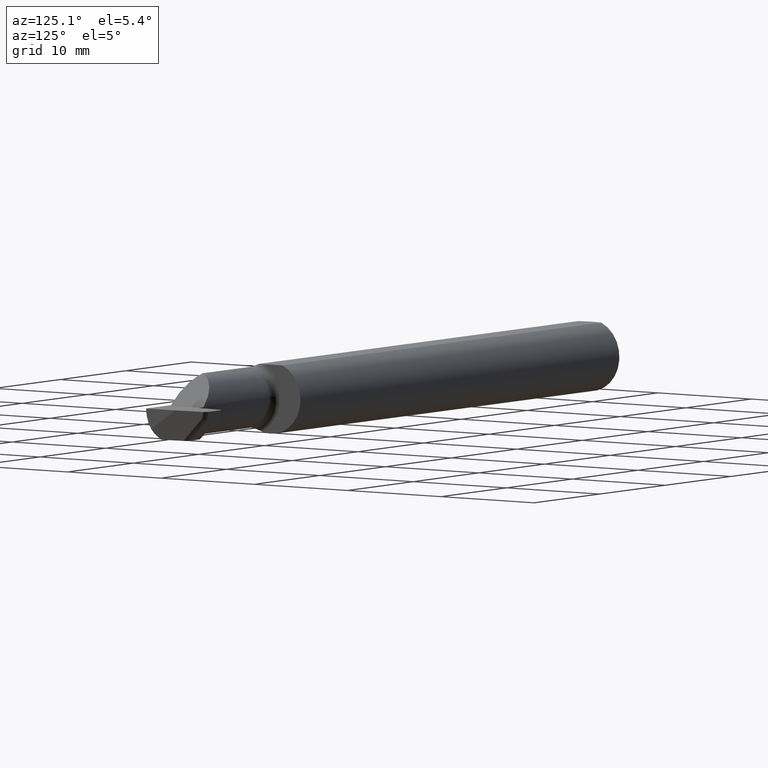
[diagram: clean part render]
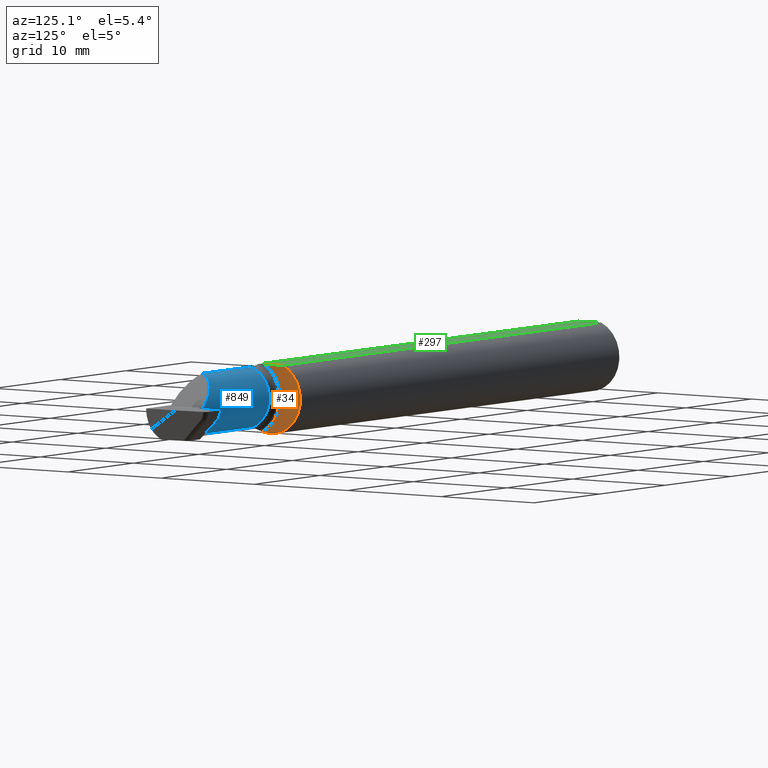
[diagram: same view with three faces highlighted in distinct colors, each labeled with its STEP entity id]
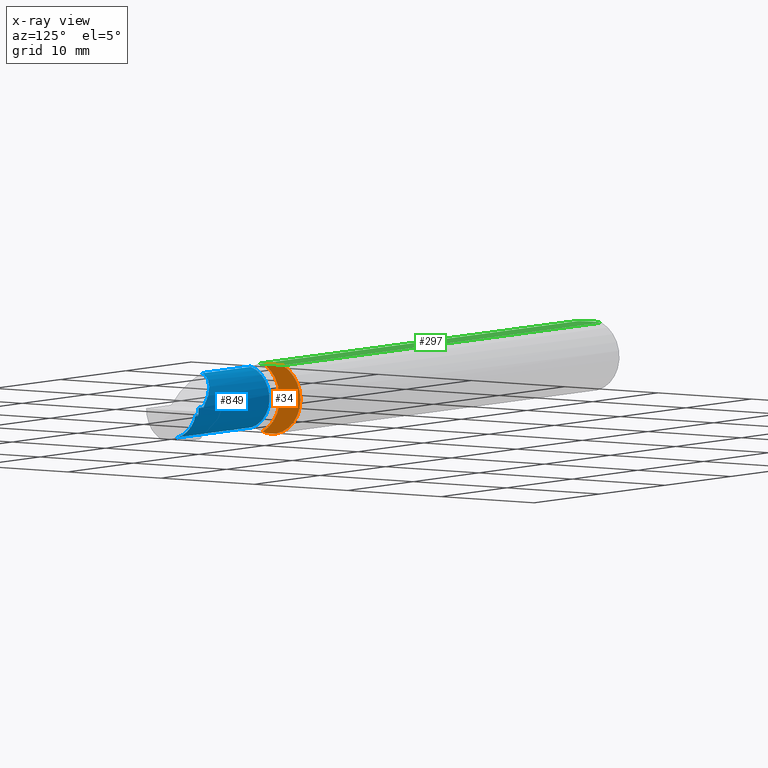
[diagram: x-ray of the same camera — body ghosted, the three highlighted faces saturated]
A machine part, auxiliary view with three faces highlighted in distinct colors.
The next image is the same camera in x-ray (body ghosted, the three faces saturated) — at least one of them is partly hidden behind the body in this view.
Their STEP definitions:

[orange] entity #34 — the highlighted planar face has unit normal (1, 0, 0).
#34 = ADVANCED_FACE ( 'NONE', ( #99 ), #498, .T. ) ;
#57 = DIRECTION ( 'NONE',  ( 0.000000000000000000, -1.000000000000000000, 0.000000000000000000 ) ) ;
#66 = VERTEX_POINT ( 'NONE', #395 ) ;
#74 = AXIS2_PLACEMENT_3D ( 'NONE', #371, #169, #635 ) ;
#99 = FACE_OUTER_BOUND ( 'NONE', #316, .T. ) ;
#147 = CARTESIAN_POINT ( 'NONE',  ( 1.929000000000000048, -0.03544785385794577137, -0.1197120384792846048 ) ) ;
#169 = DIRECTION ( 'NONE',  ( 1.000000000000000000, 0.000000000000000000, 0.000000000000000000 ) ) ;
#227 = AXIS2_PLACEMENT_3D ( 'NONE', #557, #827, #760 ) ;
#231 = ORIENTED_EDGE ( 'NONE', *, *, #502, .T. ) ;
#245 = ORIENTED_EDGE ( 'NONE', *, *, #353, .T. ) ;
#309 = VERTEX_POINT ( 'NONE', #147 ) ;
#316 = EDGE_LOOP ( 'NONE', ( #231, #245, #387 ) ) ;
#353 = EDGE_CURVE ( 'NONE', #66, #309, #774, .T. ) ;
#371 = CARTESIAN_POINT ( 'NONE',  ( 1.929000000000000048, 0.2121500000000000885, 0.000000000000000000 ) ) ;
#387 = ORIENTED_EDGE ( 'NONE', *, *, #528, .T. ) ;
#395 = CARTESIAN_POINT ( 'NONE',  ( 1.929000000000000048, -0.02689594796630699614, 0.1148500000000000076 ) ) ;
#443 = CARTESIAN_POINT ( 'NONE',  ( 1.929000000000000048, 0.04895916665957457392, 0.1148500000000000076 ) ) ;
#466 = AXIS2_PLACEMENT_3D ( 'NONE', #649, #724, #567 ) ;
#488 = VERTEX_POINT ( 'NONE', #443 ) ;
#498 = PLANE ( 'NONE',  #74 ) ;
#502 = EDGE_CURVE ( 'NONE', #488, #66, #570, .T. ) ;
#516 = CARTESIAN_POINT ( 'NONE',  ( 1.929000000000000048, 0.1000000000000000056, 0.1148500000000000076 ) ) ;
#528 = EDGE_CURVE ( 'NONE', #309, #488, #670, .T. ) ;
#557 = CARTESIAN_POINT ( 'NONE',  ( 1.929000000000000048, -0.09784999999999999254, 0.000000000000000000 ) ) ;
#567 = DIRECTION ( 'NONE',  ( 0.000000000000000000, 0.000000000000000000, -1.000000000000000000 ) ) ;
#570 = LINE ( 'NONE', #516, #737 ) ;
#635 = DIRECTION ( 'NONE',  ( 0.000000000000000000, 0.000000000000000000, -1.000000000000000000 ) ) ;
#649 = CARTESIAN_POINT ( 'NONE',  ( 1.929000000000000048, 0.000000000000000000, 0.000000000000000000 ) ) ;
#670 = CIRCLE ( 'NONE', #466, 0.1248500000000000026 ) ;
#724 = DIRECTION ( 'NONE',  ( 1.000000000000000000, 0.000000000000000000, 0.000000000000000000 ) ) ;
#737 = VECTOR ( 'NONE', #57, 39.37007874015748143 ) ;
#760 = DIRECTION ( 'NONE',  ( 0.000000000000000000, 0.000000000000000000, -1.000000000000000000 ) ) ;
#774 = CIRCLE ( 'NONE', #227, 0.1350000000000000366 ) ;
#827 = DIRECTION ( 'NONE',  ( -1.000000000000000000, -0.000000000000000000, -0.000000000000000000 ) ) ;

[blue] entity #849 — the highlighted cylindrical surface (edge-blend (fillet) strip) has radius 2.794 mm, axis along (-1, -0, -0).
#13 = DIRECTION ( 'NONE',  ( 1.000000000000000000, 0.000000000000000000, 0.000000000000000000 ) ) ;
#46 = VERTEX_POINT ( 'NONE', #661 ) ;
#62 =( BOUNDED_CURVE ( )  B_SPLINE_CURVE ( 3, ( #561, #419, #629, #679 ),
 .UNSPECIFIED., .F., .T. ) 
 B_SPLINE_CURVE_WITH_KNOTS ( ( 4, 4 ),
 ( 1.326450231515703182, 1.570796326794911879 ),
 .UNSPECIFIED. ) 
 CURVE ( )  GEOMETRIC_REPRESENTATION_ITEM ( )  RATIONAL_B_SPLINE_CURVE ( ( 1.000000000000000000, 0.9950307677608811741, 0.9950307677608811741, 1.000000000000000000 ) ) 
 REPRESENTATION_ITEM ( '' )  );
#71 = DIRECTION ( 'NONE',  ( 0.000000000000000000, 0.000000000000000000, 1.000000000000000000 ) ) ;
#93 = DIRECTION ( 'NONE',  ( -1.000000000000000000, -0.000000000000000000, -0.000000000000000000 ) ) ;
#95 = EDGE_CURVE ( 'NONE', #348, #768, #264, .T. ) ;
#96 = AXIS2_PLACEMENT_3D ( 'NONE', #352, #738, #71 ) ;
#141 = VERTEX_POINT ( 'NONE', #330 ) ;
#165 = AXIS2_PLACEMENT_3D ( 'NONE', #829, #350, #684 ) ;
#166 = CARTESIAN_POINT ( 'NONE',  ( 1.953999999999999959, -0.09784999999999999254, 0.000000000000000000 ) ) ;
#172 = VERTEX_POINT ( 'NONE', #413 ) ;
#196 = ORIENTED_EDGE ( 'NONE', *, *, #863, .T. ) ;
#211 = ORIENTED_EDGE ( 'NONE', *, *, #462, .F. ) ;
#213 = CARTESIAN_POINT ( 'NONE',  ( 2.350000000000000089, -0.09784999999999999254, 0.000000000000000000 ) ) ;
#220 = ORIENTED_EDGE ( 'NONE', *, *, #386, .T. ) ;
#221 = CARTESIAN_POINT ( 'NONE',  ( 2.244839212967228104, -0.06674575881451198789, 0.1055107870327721131 ) ) ;
#226 = CARTESIAN_POINT ( 'NONE',  ( 2.259116973875248569, -0.01831320643403844262, 0.09123302612475124584 ) ) ;
#230 = EDGE_CURVE ( 'NONE', #447, #820, #365, .T. ) ;
#237 = DIRECTION ( 'NONE',  ( 1.000000000000000000, 0.000000000000000000, 0.000000000000000000 ) ) ;
#240 = ORIENTED_EDGE ( 'NONE', *, *, #850, .F. ) ;
#241 = AXIS2_PLACEMENT_3D ( 'NONE', #213, #750, #305 ) ;
#248 = LINE ( 'NONE', #507, #814 ) ;
#264 = LINE ( 'NONE', #452, #763 ) ;
#265 = EDGE_CURVE ( 'NONE', #758, #46, #274, .T. ) ;
#274 = LINE ( 'NONE', #541, #574 ) ;
#285 = CARTESIAN_POINT ( 'NONE',  ( 2.378172693961768669, 0.008882529890359607341, -0.02661140851596372967 ) ) ;
#291 = CARTESIAN_POINT ( 'NONE',  ( 1.929000000000000270, 0.008882529890361513802, -0.02661140851595602055 ) ) ;
#293 = LINE ( 'NONE', #545, #430 ) ;
#301 = CYLINDRICAL_SURFACE ( 'NONE', #165, 0.1100000000000000422 ) ;
#302 = AXIS2_PLACEMENT_3D ( 'NONE', #166, #237, #843 ) ;
#303 = CARTESIAN_POINT ( 'NONE',  ( 2.394311322083690019, -0.06674575881451196013, -0.1055107870327721409 ) ) ;
#304 = ORIENTED_EDGE ( 'NONE', *, *, #265, .T. ) ;
#305 = DIRECTION ( 'NONE',  ( 0.000000000000000000, 0.000000000000000000, 1.000000000000000000 ) ) ;
#313 = EDGE_CURVE ( 'NONE', #447, #141, #293, .T. ) ;
#330 = CARTESIAN_POINT ( 'NONE',  ( 1.953999999999999959, -0.06674575881451194626, -0.1055107870327721409 ) ) ;
#348 = VERTEX_POINT ( 'NONE', #544 ) ;
#350 = DIRECTION ( 'NONE',  ( -1.000000000000000000, -0.000000000000000000, -0.000000000000000000 ) ) ;
#352 = CARTESIAN_POINT ( 'NONE',  ( 2.394311322083690019, -0.09784999999999999254, 0.000000000000000000 ) ) ;
#365 = CIRCLE ( 'NONE', #96, 0.1100000000000000422 ) ;
#370 = EDGE_CURVE ( 'NONE', #777, #768, #62, .T. ) ;
#383 = ORIENTED_EDGE ( 'NONE', *, *, #754, .F. ) ;
#386 = EDGE_CURVE ( 'NONE', #141, #758, #698, .T. ) ;
#413 = CARTESIAN_POINT ( 'NONE',  ( 2.350000000000000089, 0.01214944318040893194, 0.0003500000000001822508 ) ) ;
#419 = CARTESIAN_POINT ( 'NONE',  ( 2.379242751836523340, 0.01105540399502987804, -0.01789648648597852096 ) ) ;
#427 = LINE ( 'NONE', #291, #680 ) ;
#430 = VECTOR ( 'NONE', #828, 39.37007874015748143 ) ;
#436 = ORIENTED_EDGE ( 'NONE', *, *, #370, .F. ) ;
#447 = VERTEX_POINT ( 'NONE', #303 ) ;
#452 = CARTESIAN_POINT ( 'NONE',  ( 1.929000000000000048, 0.01215000000000003230, -2.465075339897403686E-17 ) ) ;
#455 =( BOUNDED_CURVE ( )  B_SPLINE_CURVE ( 3, ( #746, #627, #226, #221 ),
 .UNSPECIFIED., .F., .F. ) 
 B_SPLINE_CURVE_WITH_KNOTS ( ( 4, 4 ),
 ( 4.715570803935303701, 5.996508910626888067 ),
 .UNSPECIFIED. ) 
 CURVE ( )  GEOMETRIC_REPRESENTATION_ITEM ( )  RATIONAL_B_SPLINE_CURVE ( ( 1.000000000000000000, 0.8678770354264943032, 0.8678770354264943032, 1.000000000000000000 ) ) 
 REPRESENTATION_ITEM ( '' )  );
#462 = EDGE_CURVE ( 'NONE', #820, #476, #248, .T. ) ;
#476 = VERTEX_POINT ( 'NONE', #715 ) ;
#507 = CARTESIAN_POINT ( 'NONE',  ( 2.394311322083690019, 0.008882529890359603872, -0.02661140851596367762 ) ) ;
#538 = ORIENTED_EDGE ( 'NONE', *, *, #95, .T. ) ;
#541 = CARTESIAN_POINT ( 'NONE',  ( 2.155499999999999972, -0.06674575881451194626, 0.1055107870327721409 ) ) ;
#542 = CARTESIAN_POINT ( 'NONE',  ( 2.381440164071409349, 0.01215000000000003577, 0.000000000000000000 ) ) ;
#543 = ORIENTED_EDGE ( 'NONE', *, *, #313, .T. ) ;
#544 = CARTESIAN_POINT ( 'NONE',  ( 2.350000000000000089, 0.01215000000000004965, -2.465075339897404302E-17 ) ) ;
#545 = CARTESIAN_POINT ( 'NONE',  ( 2.155499999999999972, -0.06674575881451194626, -0.1055107870327721409 ) ) ;
#547 = FACE_OUTER_BOUND ( 'NONE', #853, .T. ) ;
#561 = CARTESIAN_POINT ( 'NONE',  ( 2.378172693961768669, 0.008882529890359607341, -0.02661140851596372967 ) ) ;
#574 = VECTOR ( 'NONE', #13, 39.37007874015748143 ) ;
#583 = DIRECTION ( 'NONE',  ( 1.000000000000000000, 0.000000000000000000, 0.000000000000000000 ) ) ;
#612 = CARTESIAN_POINT ( 'NONE',  ( 1.953999999999999959, -0.06674575881451194626, 0.1055107870327721409 ) ) ;
#627 = CARTESIAN_POINT ( 'NONE',  ( 2.299507022518907817, 0.01198878289334363682, 0.05084297748109223303 ) ) ;
#629 = CARTESIAN_POINT ( 'NONE',  ( 2.380337347841493756, 0.01215000000000005138, -0.008981717422824352093 ) ) ;
#632 = CARTESIAN_POINT ( 'NONE',  ( 2.394311322083690019, 0.008882529890359603872, -0.02661140851596367762 ) ) ;
#644 = DIRECTION ( 'NONE',  ( -1.000000000000000000, -0.000000000000000000, -0.000000000000000000 ) ) ;
#661 = CARTESIAN_POINT ( 'NONE',  ( 2.244839212967228104, -0.06674575881451198789, 0.1055107870327721131 ) ) ;
#679 = CARTESIAN_POINT ( 'NONE',  ( 2.381440164071409349, 0.01215000000000003577, 0.000000000000000000 ) ) ;
#680 = VECTOR ( 'NONE', #93, 39.37007874015748143 ) ;
#684 = DIRECTION ( 'NONE',  ( 0.000000000000000000, 0.000000000000000000, 1.000000000000000000 ) ) ;
#698 = CIRCLE ( 'NONE', #302, 0.1100000000000000422 ) ;
#702 = ORIENTED_EDGE ( 'NONE', *, *, #230, .F. ) ;
#715 = CARTESIAN_POINT ( 'NONE',  ( 2.385434248793042666, 0.008882529890359603872, -0.02661140851596367762 ) ) ;
#738 = DIRECTION ( 'NONE',  ( 1.000000000000000000, -0.000000000000000000, -0.000000000000000000 ) ) ;
#746 = CARTESIAN_POINT ( 'NONE',  ( 2.350000000000000089, 0.01214944318040893194, 0.0003500000000001822508 ) ) ;
#750 = DIRECTION ( 'NONE',  ( -1.000000000000000000, -0.000000000000000000, -0.000000000000000000 ) ) ;
#754 = EDGE_CURVE ( 'NONE', #172, #46, #455, .T. ) ;
#758 = VERTEX_POINT ( 'NONE', #612 ) ;
#763 = VECTOR ( 'NONE', #583, 39.37007874015748143 ) ;
#768 = VERTEX_POINT ( 'NONE', #542 ) ;
#770 = CIRCLE ( 'NONE', #241, 0.1100000000000000422 ) ;
#777 = VERTEX_POINT ( 'NONE', #285 ) ;
#814 = VECTOR ( 'NONE', #644, 39.37007874015748143 ) ;
#820 = VERTEX_POINT ( 'NONE', #632 ) ;
#828 = DIRECTION ( 'NONE',  ( -1.000000000000000000, -0.000000000000000000, -0.000000000000000000 ) ) ;
#829 = CARTESIAN_POINT ( 'NONE',  ( 1.929000000000000048, -0.09784999999999999254, 0.000000000000000000 ) ) ;
#843 = DIRECTION ( 'NONE',  ( 0.000000000000000000, 0.000000000000000000, -1.000000000000000000 ) ) ;
#849 = ADVANCED_FACE ( 'NONE', ( #547 ), #301, .T. ) ;
#850 = EDGE_CURVE ( 'NONE', #476, #777, #427, .T. ) ;
#853 = EDGE_LOOP ( 'NONE', ( #240, #211, #702, #543, #220, #304, #383, #196, #538, #436 ) ) ;
#863 = EDGE_CURVE ( 'NONE', #172, #348, #770, .T. ) ;

[green] entity #297 — the highlighted planar face has unit normal (-0, 0, -1).
#57 = DIRECTION ( 'NONE',  ( 0.000000000000000000, -1.000000000000000000, 0.000000000000000000 ) ) ;
#65 = CARTESIAN_POINT ( 'NONE',  ( 1.929890775228045419, -0.04165898946242330841, 0.1148500000000000076 ) ) ;
#66 = VERTEX_POINT ( 'NONE', #395 ) ;
#67 = CARTESIAN_POINT ( 'NONE',  ( 0.009468318732755824640, -0.03334632524505316137, 0.1148499999999999660 ) ) ;
#94 = ORIENTED_EDGE ( 'NONE', *, *, #704, .F. ) ;
#112 = VECTOR ( 'NONE', #135, 39.37007874015748143 ) ;
#119 = ORIENTED_EDGE ( 'NONE', *, *, #134, .T. ) ;
#134 = EDGE_CURVE ( 'NONE', #683, #743, #772, .T. ) ;
#135 = DIRECTION ( 'NONE',  ( -1.000000000000000000, -0.000000000000000000, -0.000000000000000000 ) ) ;
#138 = AXIS2_PLACEMENT_3D ( 'NONE', #140, #468, #477 ) ;
#140 = CARTESIAN_POINT ( 'NONE',  ( 0.000000000000000000, 0.1000000000000000056, 0.1148500000000000076 ) ) ;
#153 = VERTEX_POINT ( 'NONE', #460 ) ;
#178 = ORIENTED_EDGE ( 'NONE', *, *, #502, .F. ) ;
#200 = CARTESIAN_POINT ( 'NONE',  ( 0.005933586687556474670, -0.01676171734555376158, 0.1148500000000000215 ) ) ;
#217 = VERTEX_POINT ( 'NONE', #406 ) ;
#251 = CARTESIAN_POINT ( 'NONE',  ( 0.004999999999933147331, 5.639788019834102201E-15, 0.1148500000000000076 ) ) ;
#261 = CARTESIAN_POINT ( 'NONE',  ( 0.004999999999999684384, 0.008366382319371040363, 0.1148500000000000076 ) ) ;
#271 = EDGE_LOOP ( 'NONE', ( #178, #346, #533, #119, #94, #780 ) ) ;
#273 = CARTESIAN_POINT ( 'NONE',  ( 1.931165089549962133, -0.04895916665957456698, 0.1148500000000000076 ) ) ;
#297 = ADVANCED_FACE ( 'NONE', ( #811 ), #616, .F. ) ;
#315 = CARTESIAN_POINT ( 'NONE',  ( 0.009419795109434097105, 0.03314228182474765472, 0.1148499999999999938 ) ) ;
#324 = CARTESIAN_POINT ( 'NONE',  ( 0.01192863036854219932, 0.04112691532340072287, 0.1148500000000000215 ) ) ;
#331 = CARTESIAN_POINT ( 'NONE',  ( 1.929000000000000048, -0.02689594796630699614, 0.1148500000000000076 ) ) ;
#339 = CARTESIAN_POINT ( 'NONE',  ( 2.500000000000000000, -0.04895916665957456698, 0.1148500000000000076 ) ) ;
#346 = ORIENTED_EDGE ( 'NONE', *, *, #623, .F. ) ;
#347 = B_SPLINE_CURVE_WITH_KNOTS ( 'NONE', 3,
 ( #273, #65, #730, #331 ),
 .UNSPECIFIED., .F., .F.,
 ( 4, 4 ),
 ( 2.168404344971008868E-19, 0.0005630975672748610161 ),
 .UNSPECIFIED. ) ;
#395 = CARTESIAN_POINT ( 'NONE',  ( 1.929000000000000048, -0.02689594796630699614, 0.1148500000000000076 ) ) ;
#400 = CARTESIAN_POINT ( 'NONE',  ( 0.01198609678885614524, -0.04127345953699167180, 0.1148499999999999938 ) ) ;
#403 = CARTESIAN_POINT ( 'NONE',  ( 0.01499999999999914770, -0.04895916665957456698, 0.1148500000000000076 ) ) ;
#406 = CARTESIAN_POINT ( 'NONE',  ( 1.931165089549962133, -0.04895916665957456698, 0.1148500000000000076 ) ) ;
#443 = CARTESIAN_POINT ( 'NONE',  ( 1.929000000000000048, 0.04895916665957457392, 0.1148500000000000076 ) ) ;
#460 = CARTESIAN_POINT ( 'NONE',  ( 0.01499999999999915637, 0.04895916665957456698, 0.1148500000000000076 ) ) ;
#464 = EDGE_CURVE ( 'NONE', #153, #683, #525, .T. ) ;
#468 = DIRECTION ( 'NONE',  ( -0.000000000000000000, 0.000000000000000000, -1.000000000000000000 ) ) ;
#477 = DIRECTION ( 'NONE',  ( -1.000000000000000000, 0.000000000000000000, 0.000000000000000000 ) ) ;
#488 = VERTEX_POINT ( 'NONE', #443 ) ;
#502 = EDGE_CURVE ( 'NONE', #488, #66, #570, .T. ) ;
#516 = CARTESIAN_POINT ( 'NONE',  ( 1.929000000000000048, 0.1000000000000000056, 0.1148500000000000076 ) ) ;
#525 = B_SPLINE_CURVE_WITH_KNOTS ( 'NONE', 3,
 ( #653, #324, #315, #787, #261, #251 ),
 .UNSPECIFIED., .F., .F.,
 ( 4, 2, 4 ),
 ( 0.002811086258179029771, 0.003441534532783594585, 0.004071982807388159833 ),
 .UNSPECIFIED. ) ;
#529 = CARTESIAN_POINT ( 'NONE',  ( 0.004999999999933147331, 5.639788019834102201E-15, 0.1148500000000000076 ) ) ;
#533 = ORIENTED_EDGE ( 'NONE', *, *, #464, .T. ) ;
#570 = LINE ( 'NONE', #516, #737 ) ;
#592 = CARTESIAN_POINT ( 'NONE',  ( 0.004999999999998236758, -0.008410179126392275384, 0.1148500000000000215 ) ) ;
#593 = LINE ( 'NONE', #339, #112 ) ;
#597 = LINE ( 'NONE', #665, #660 ) ;
#613 = EDGE_CURVE ( 'NONE', #217, #66, #347, .T. ) ;
#616 = PLANE ( 'NONE',  #138 ) ;
#623 = EDGE_CURVE ( 'NONE', #153, #488, #597, .T. ) ;
#653 = CARTESIAN_POINT ( 'NONE',  ( 0.01499999999999915637, 0.04895916665957456698, 0.1148500000000000076 ) ) ;
#660 = VECTOR ( 'NONE', #804, 39.37007874015748143 ) ;
#664 = CARTESIAN_POINT ( 'NONE',  ( 0.01499999999999914770, -0.04895916665957456698, 0.1148500000000000076 ) ) ;
#665 = CARTESIAN_POINT ( 'NONE',  ( 2.500000000000000000, 0.04895916665957456698, 0.1148500000000000076 ) ) ;
#674 = CARTESIAN_POINT ( 'NONE',  ( 0.004999999999933147331, 5.639788019834102201E-15, 0.1148500000000000076 ) ) ;
#683 = VERTEX_POINT ( 'NONE', #674 ) ;
#704 = EDGE_CURVE ( 'NONE', #217, #743, #593, .T. ) ;
#730 = CARTESIAN_POINT ( 'NONE',  ( 1.929000000000000048, -0.03432117512376129526, 0.1148500000000000076 ) ) ;
#737 = VECTOR ( 'NONE', #57, 39.37007874015748143 ) ;
#743 = VERTEX_POINT ( 'NONE', #403 ) ;
#772 = B_SPLINE_CURVE_WITH_KNOTS ( 'NONE', 3,
 ( #529, #592, #200, #67, #400, #664 ),
 .UNSPECIFIED., .F., .F.,
 ( 4, 2, 4 ),
 ( 0.004071982807388159833, 0.004705731387952724089, 0.005339479968517289211 ),
 .UNSPECIFIED. ) ;
#780 = ORIENTED_EDGE ( 'NONE', *, *, #613, .T. ) ;
#787 = CARTESIAN_POINT ( 'NONE',  ( 0.005949639560152591468, 0.01681318950603462661, 0.1148500000000000076 ) ) ;
#804 = DIRECTION ( 'NONE',  ( 1.000000000000000000, 0.000000000000000000, 0.000000000000000000 ) ) ;
#811 = FACE_OUTER_BOUND ( 'NONE', #271, .T. ) ;